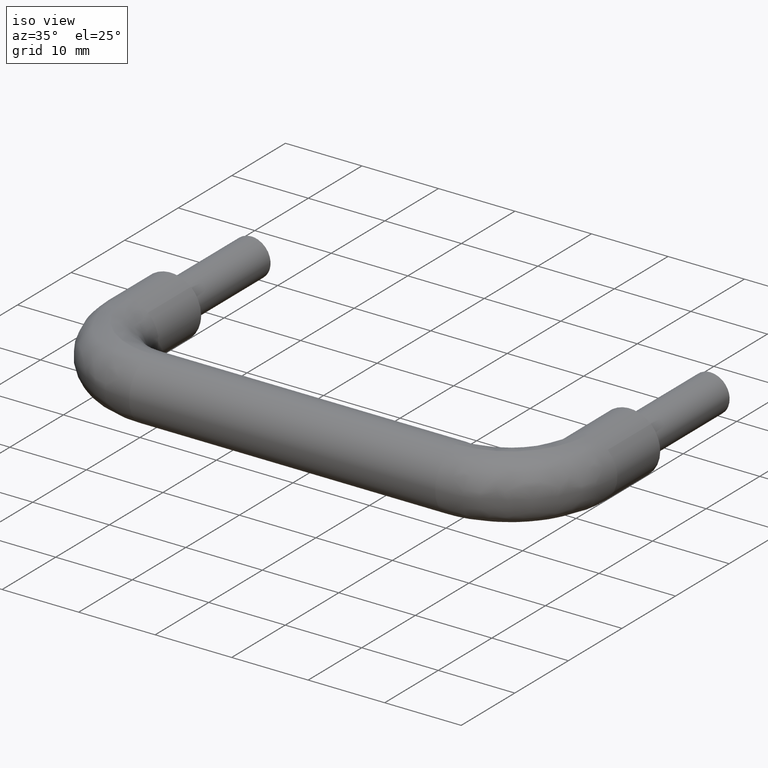
[diagram: clean part render]
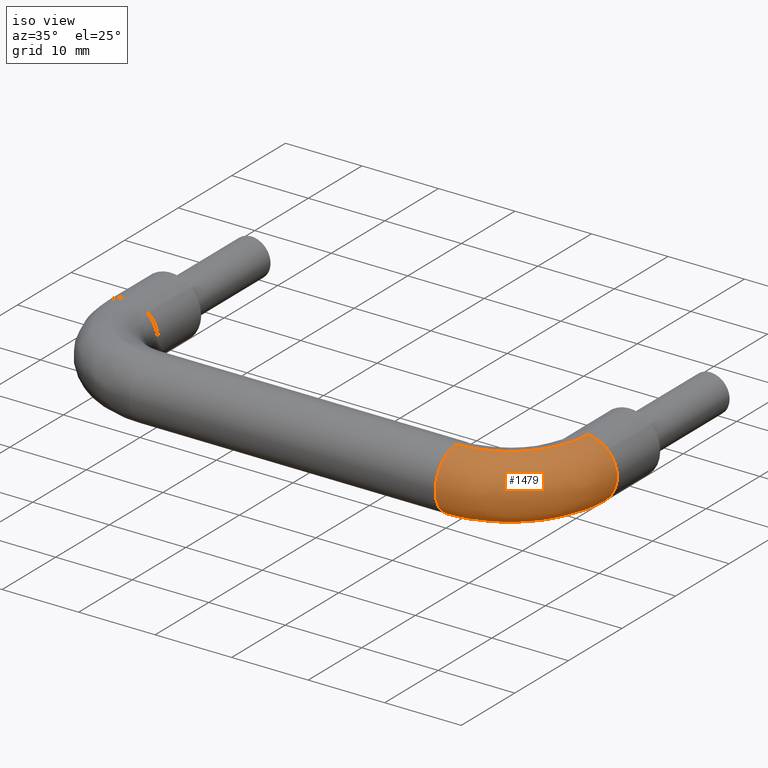
[diagram: same view with one face highlighted and labeled with its STEP entity id]
A machine part, iso view. The second image highlights one B-rep face of the part: STEP entity #1479.
In plain terms, the highlighted face is a freeform B-spline surface patch.
Its self-contained STEP definition (entity closure, byte-faithful):
#747=CARTESIAN_POINT('',(62.753417808765207,-8.000000001999243,2.901497951945548));
#748=VERTEX_POINT('',#747);
#754=CARTESIAN_POINT('',(64.0,-8.0,0.0));
#755=VERTEX_POINT('',#754);
#756=CARTESIAN_POINT('',(62.753417808765207,-8.000000001999243,2.901497951945548));
#757=CARTESIAN_POINT('',(64.0,-8.0,1.718536429025472));
#758=CARTESIAN_POINT('',(64.0,-8.0,0.0));
#766=(BOUNDED_CURVE()B_SPLINE_CURVE(2,(#756,#757,#758),.UNSPECIFIED.,.F.,.U.)B_SPLINE_CURVE_WITH_KNOTS((3,3),(0.871049475371173,1.0),.UNSPECIFIED.)CURVE()GEOMETRIC_REPRESENTATION_ITEM()RATIONAL_B_SPLINE_CURVE((0.853699665167448,0.848925063095118,1.0))REPRESENTATION_ITEM(''));
#767=EDGE_CURVE('',#748,#755,#766,.T.);
#769=CARTESIAN_POINT('',(59.899484552384273,-7.999991810552365,-3.998736881162301));
#770=VERTEX_POINT('',#769);
#771=CARTESIAN_POINT('',(64.0,-8.0,0.0));
#772=CARTESIAN_POINT('',(64.000000000000043,-7.999996006910996,-3.999999999998598));
#773=CARTESIAN_POINT('',(60.000000000000071,-7.999991912187178,-3.999999999997161));
#774=CARTESIAN_POINT('',(59.949734339754386,-7.999991860731179,-3.999999999997142));
#775=CARTESIAN_POINT('',(59.899484552384266,-7.999991810552365,-3.998736881162301));
#783=(BOUNDED_CURVE()B_SPLINE_CURVE(2,(#771,#772,#773,#774,#775),.UNSPECIFIED.,.F.,.U.)B_SPLINE_CURVE_WITH_KNOTS((3,2,3),(0.0,0.250000000000000,0.254419892319458),.UNSPECIFIED.)CURVE()GEOMETRIC_REPRESENTATION_ITEM()RATIONAL_B_SPLINE_CURVE((1.0,0.707106781186548,1.0,0.994821774046980,0.989826645702906))REPRESENTATION_ITEM(''));
#784=EDGE_CURVE('',#755,#770,#783,.T.);
#886=CARTESIAN_POINT('',(60.100520387876692,-8.000000006253728,3.998736756979773));
#887=VERTEX_POINT('',#886);
#903=CARTESIAN_POINT('',(60.100520387876685,-8.000000006253728,3.998736756979774));
#904=CARTESIAN_POINT('',(61.637893561696416,-8.000000003788189,3.960090212702295));
#905=CARTESIAN_POINT('',(62.753417808765207,-8.000000001999243,2.901497951945548));
#913=(BOUNDED_CURVE()B_SPLINE_CURVE(2,(#903,#904,#905),.UNSPECIFIED.,.F.,.U.)B_SPLINE_CURVE_WITH_KNOTS((3,3),(0.754420108764336,0.871049475371174),.UNSPECIFIED.)CURVE()GEOMETRIC_REPRESENTATION_ITEM()RATIONAL_B_SPLINE_CURVE((0.989826156474256,0.858018056403918,0.853699665167448))REPRESENTATION_ITEM(''));
#914=EDGE_CURVE('',#887,#748,#913,.T.);
#1028=CARTESIAN_POINT('',(50.000000000000007,-20.901498082715289,-2.753417671912254));
#1029=VERTEX_POINT('',#1028);
#1035=CARTESIAN_POINT('',(50.0,-22.0,0.0));
#1036=VERTEX_POINT('',#1035);
#1037=CARTESIAN_POINT('',(50.0,-22.0,0.0));
#1038=CARTESIAN_POINT('',(49.999999999999986,-22.0,-1.595837175758675));
#1039=CARTESIAN_POINT('',(50.000000000000007,-20.901498082715289,-2.753417671912254));
#1047=(BOUNDED_CURVE()B_SPLINE_CURVE(2,(#1037,#1038,#1039),.UNSPECIFIED.,.F.,.U.)B_SPLINE_CURVE_WITH_KNOTS((3,3),(0.0,0.121049461033561),.UNSPECIFIED.)CURVE()GEOMETRIC_REPRESENTATION_ITEM()RATIONAL_B_SPLINE_CURVE((1.0,0.858181734888987,0.853699666229196))REPRESENTATION_ITEM(''));
#1048=EDGE_CURVE('',#1036,#1029,#1047,.T.);
#1050=CARTESIAN_POINT('',(50.000000000706883,-18.100520384777500,3.998736757057681));
#1051=VERTEX_POINT('',#1050);
#1052=CARTESIAN_POINT('',(50.000000000706876,-18.100520384777496,3.998736757057681));
#1053=CARTESIAN_POINT('',(49.999999999999993,-21.999999999999996,3.900711498859729));
#1054=CARTESIAN_POINT('',(50.0,-22.0,0.0));
#1062=(BOUNDED_CURVE()B_SPLINE_CURVE(2,(#1052,#1053,#1054),.UNSPECIFIED.,.F.,.U.)B_SPLINE_CURVE_WITH_KNOTS((3,3),(0.754420108493106,1.0),.UNSPECIFIED.)CURVE()GEOMETRIC_REPRESENTATION_ITEM()RATIONAL_B_SPLINE_CURVE((0.989826157087315,0.712285260402750,1.0))REPRESENTATION_ITEM(''));
#1063=EDGE_CURVE('',#1051,#1036,#1062,.T.);
#1101=CARTESIAN_POINT('',(50.000000000186787,-17.899479618020539,-3.998736757128018));
#1102=VERTEX_POINT('',#1101);
#1116=CARTESIAN_POINT('',(50.000000000000007,-20.901498082715289,-2.753417671912254));
#1117=CARTESIAN_POINT('',(50.0,-19.718536654108682,-4.000000000000001));
#1118=CARTESIAN_POINT('',(50.0,-18.0,-4.0));
#1119=CARTESIAN_POINT('',(50.0,-17.949731871300280,-4.0));
#1120=CARTESIAN_POINT('',(50.000000000186787,-17.899479618020539,-3.998736757128018));
#1128=(BOUNDED_CURVE()B_SPLINE_CURVE(2,(#1116,#1117,#1118,#1119,#1120),.UNSPECIFIED.,.F.,.U.)B_SPLINE_CURVE_WITH_KNOTS((3,2,3),(0.121049461033561,0.250000000000000,0.254420108248230),.UNSPECIFIED.)CURVE()GEOMETRIC_REPRESENTATION_ITEM()RATIONAL_B_SPLINE_CURVE((0.853699666229196,0.848925046297560,1.0,0.994821521070688,0.989826157640806))REPRESENTATION_ITEM(''));
#1129=EDGE_CURVE('',#1029,#1102,#1128,.T.);
#1408=CARTESIAN_POINT('',(50.000000000186787,-17.899479618020539,-3.998736757128019));
#1409=CARTESIAN_POINT('',(59.899490274660700,-17.899479617747975,-3.998736819145160));
#1410=CARTESIAN_POINT('',(59.899484552384266,-7.999991810552365,-3.998736881162300));
#1418=(BOUNDED_CURVE()B_SPLINE_CURVE(2,(#1408,#1409,#1410),.UNSPECIFIED.,.F.,.U.)B_SPLINE_CURVE_WITH_KNOTS((3,3),(-1.733067862694350,-0.253786818865084),.UNSPECIFIED.)CURVE()GEOMETRIC_REPRESENTATION_ITEM()RATIONAL_B_SPLINE_CURVE((0.889551170312059,0.630646694483035,0.894193826133788))REPRESENTATION_ITEM(''));
#1419=EDGE_CURVE('',#1102,#770,#1418,.T.);
#1424=CARTESIAN_POINT('',(50.000000000706876,-18.100520384777496,3.998736757057681));
#1425=CARTESIAN_POINT('',(60.100520369265880,-18.100520380359587,3.998736757133198));
#1426=CARTESIAN_POINT('',(60.100520387876678,-8.000000006253728,3.998736756979774));
#1434=(BOUNDED_CURVE()B_SPLINE_CURVE(2,(#1424,#1425,#1426),.UNSPECIFIED.,.F.,.U.)B_SPLINE_CURVE_WITH_KNOTS((3,3),(-1.733067862587692,-0.253787687740336),.UNSPECIFIED.)CURVE()GEOMETRIC_REPRESENTATION_ITEM()RATIONAL_B_SPLINE_CURVE((0.889551170274724,0.630646846572999,0.894193516538193))REPRESENTATION_ITEM(''));
#1435=EDGE_CURVE('',#1051,#887,#1434,.T.);
#1440=CARTESIAN_POINT('',(49.313746009331091,-17.818444263339330,-3.997301829668271));
#1441=CARTESIAN_POINT('',(60.603575772255859,-18.607539818702264,-3.997301829668273));
#1442=CARTESIAN_POINT('',(59.818700079104012,-7.317415903633189,-3.997301829668271));
#1443=CARTESIAN_POINT('',(49.311761912228832,-17.846831343161732,-3.998017165967396));
#1444=CARTESIAN_POINT('',(60.634232823798513,-18.638208331093502,-3.998017165967394));
#1445=CARTESIAN_POINT('',(59.847087898540792,-7.315442416927009,-3.998017165967394));
#1446=CARTESIAN_POINT('',(49.030957013627933,-21.864392309325492,-4.099257138906547));
#1447=CARTESIAN_POINT('',(64.973057894430013,-22.978655430413465,-4.099257138906548));
#1448=CARTESIAN_POINT('',(63.864753540700370,-7.036139184343932,-4.099257138906546));
#1449=CARTESIAN_POINT('',(49.023948303422671,-21.964668054813213,-0.100520381773350));
#1450=CARTESIAN_POINT('',(65.081352185957300,-23.086990206736708,-0.100520381773350));
#1451=CARTESIAN_POINT('',(63.965031898833821,-7.029167954759546,-0.100520381773350));
#1452=CARTESIAN_POINT('',(49.016939593217423,-22.064943800300938,3.898216375359850));
#1453=CARTESIAN_POINT('',(65.189646477484587,-23.195324983059944,3.898216375359849));
#1454=CARTESIAN_POINT('',(64.065310256967294,-7.022196725175158,3.898216375359849));
#1455=CARTESIAN_POINT('',(49.297778690148803,-18.046893548236412,3.999468677991512));
#1456=CARTESIAN_POINT('',(60.850292995224514,-18.854349274569731,3.999468677991511));
#1457=CARTESIAN_POINT('',(60.047155316158786,-7.301533973205642,3.999468677991511));
#1458=CARTESIAN_POINT('',(49.299796578313050,-18.018023009427818,4.000196197148616));
#1459=CARTESIAN_POINT('',(60.819113824916883,-18.823158448224365,4.000196197148616));
#1460=CARTESIAN_POINT('',(60.018284025139494,-7.303541070268653,4.000196197148616));
#1468=(BOUNDED_SURFACE()B_SPLINE_SURFACE(2,2,((#1440,#1443,#1446,#1449,#1452,#1455,#1458),(#1441,#1444,#1447,#1450,#1453,#1456,#1459),(#1442,#1445,#1448,#1451,#1454,#1457,#1460)),.UNSPECIFIED.,.F.,.F.,.U.)B_SPLINE_SURFACE_WITH_KNOTS((3,3),(3,1,2,1,3),(0.0,25.510897950889721),(0.0,0.067294671557552,6.694711669527080,13.322128667496610,13.390579874429029),.UNSPECIFIED.)GEOMETRIC_REPRESENTATION_ITEM()RATIONAL_B_SPLINE_SURFACE(((0.922171953786466,0.919445601029169,0.648218396897274,0.916719248271871,0.648218396897274,0.919492456498334,0.922265664724798),(0.606834870420412,0.605040795123065,0.426559846317306,0.603246719825717,0.426559846317306,0.605071628345050,0.606896536864383),(0.927308776363626,0.924567236861232,0.651829201674453,0.921825697358838,0.651829201674453,0.924614353331864,0.927403009304890)))REPRESENTATION_ITEM('')SURFACE());
#1469=ORIENTED_EDGE('',*,*,#767,.F.);
#1470=ORIENTED_EDGE('',*,*,#914,.F.);
#1471=ORIENTED_EDGE('',*,*,#1435,.F.);
#1472=ORIENTED_EDGE('',*,*,#1063,.T.);
#1473=ORIENTED_EDGE('',*,*,#1048,.T.);
#1474=ORIENTED_EDGE('',*,*,#1129,.T.);
#1475=ORIENTED_EDGE('',*,*,#1419,.T.);
#1476=ORIENTED_EDGE('',*,*,#784,.F.);
#1477=EDGE_LOOP('',(#1469,#1470,#1471,#1472,#1473,#1474,#1475,#1476));
#1478=FACE_OUTER_BOUND('',#1477,.T.);
#1479=ADVANCED_FACE('',(#1478),#1468,.T.);